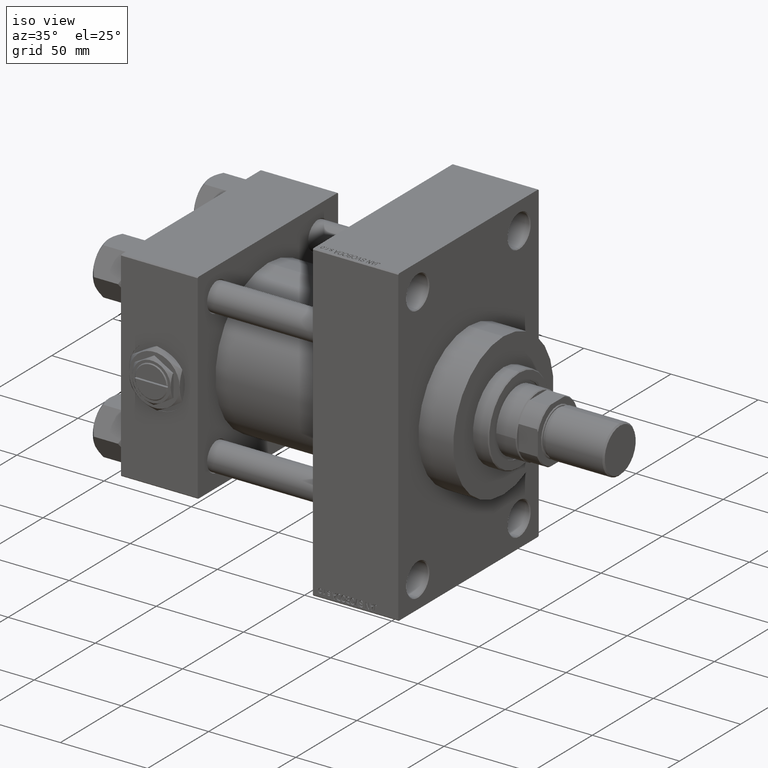
[diagram: clean part render]
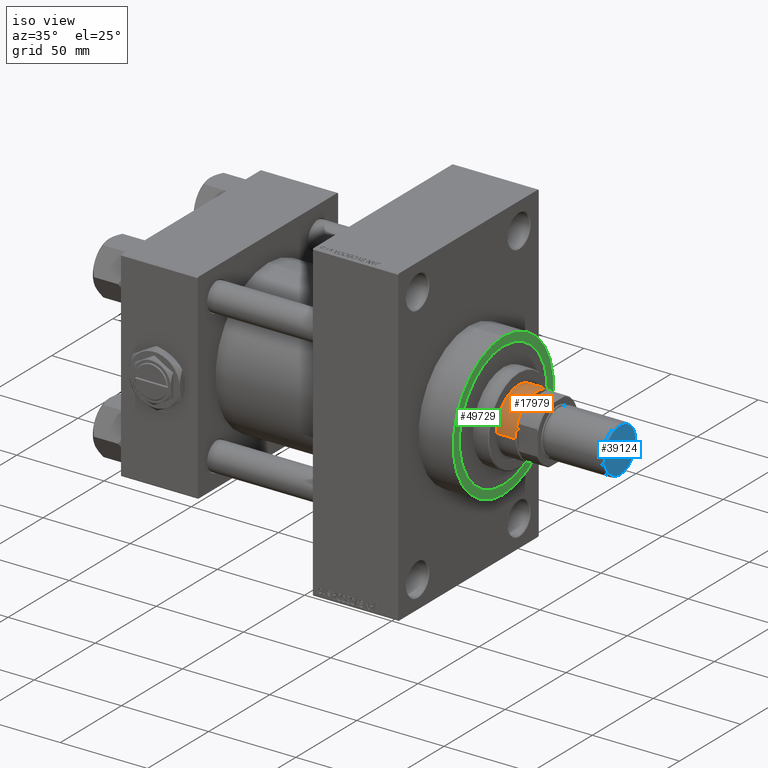
[diagram: same view with three faces highlighted in distinct colors, each labeled with its STEP entity id]
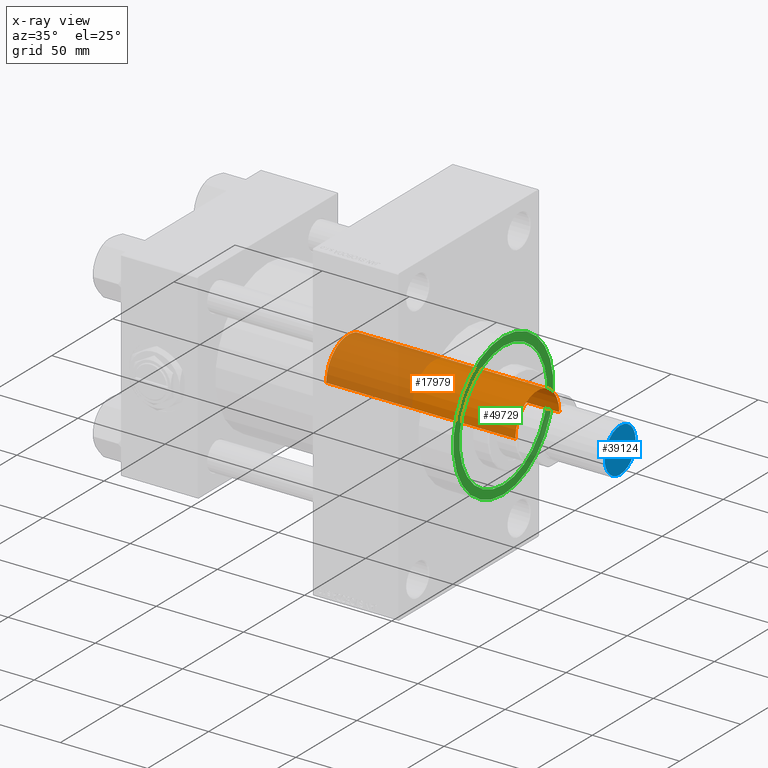
[diagram: x-ray of the same camera — body ghosted, the three highlighted faces saturated]
A machine part, iso view with three faces highlighted in distinct colors.
The next image is the same camera in x-ray (body ghosted, the three faces saturated) — at least one of them is partly hidden behind the body in this view.
Their STEP definitions:

[orange] entity #17979 — the highlighted cylindrical surface (partial cylindrical patch) has radius 18 mm, axis along (-1, 0, 0).
#1216 = CARTESIAN_POINT ( 'NONE',  ( 18.00000000000000000, 2.204364238465235428E-15, 46.00000000000000000 ) ) ;
#1577 = CARTESIAN_POINT ( 'NONE',  ( 18.00000000000000000, 2.204364238465235428E-15, 155.0000000000000000 ) ) ;
#2056 = DIRECTION ( 'NONE',  ( 1.000000000000000000, 0.000000000000000000, 0.000000000000000000 ) ) ;
#3685 = EDGE_CURVE ( 'NONE', #16032, #28074, #46799, .T. ) ;
#4630 = DIRECTION ( 'NONE',  ( -0.000000000000000000, -0.000000000000000000, -1.000000000000000000 ) ) ;
#5237 = EDGE_CURVE ( 'NONE', #41529, #15264, #44672, .T. ) ;
#7007 = CARTESIAN_POINT ( 'NONE',  ( -18.00000000000000000, 0.000000000000000000, 154.4999999999999716 ) ) ;
#9617 = FACE_OUTER_BOUND ( 'NONE', #43288, .T. ) ;
#10102 = DIRECTION ( 'NONE',  ( -0.000000000000000000, -0.000000000000000000, -1.000000000000000000 ) ) ;
#10877 = VECTOR ( 'NONE', #4630, 1000.000000000000000 ) ;
#10985 = ORIENTED_EDGE ( 'NONE', *, *, #3685, .F. ) ;
#12832 = AXIS2_PLACEMENT_3D ( 'NONE', #13436, #20986, #2056 ) ;
#12921 = DIRECTION ( 'NONE',  ( -0.000000000000000000, -0.000000000000000000, -1.000000000000000000 ) ) ;
#13436 = CARTESIAN_POINT ( 'NONE',  ( 0.000000000000000000, 0.000000000000000000, 46.00000000000000000 ) ) ;
#13920 = CARTESIAN_POINT ( 'NONE',  ( 18.00000000000000000, 2.204364238465235428E-15, 154.4999999999999716 ) ) ;
#14138 = CARTESIAN_POINT ( 'NONE',  ( -18.00000000000000000, 0.000000000000000000, 46.00000000000000000 ) ) ;
#15264 = VERTEX_POINT ( 'NONE', #14138 ) ;
#16027 = EDGE_CURVE ( 'NONE', #15264, #28074, #17613, .T. ) ;
#16032 = VERTEX_POINT ( 'NONE', #13920 ) ;
#17613 = CIRCLE ( 'NONE', #12832, 18.00000000000000000 ) ;
#17979 = ADVANCED_FACE ( 'NONE', ( #9617 ), #36371, .T. ) ;
#20986 = DIRECTION ( 'NONE',  ( 0.000000000000000000, 0.000000000000000000, 1.000000000000000000 ) ) ;
#21098 = CIRCLE ( 'NONE', #37215, 18.00000000000000000 ) ;
#23665 = DIRECTION ( 'NONE',  ( 1.000000000000000000, 0.000000000000000000, 0.000000000000000000 ) ) ;
#24510 = DIRECTION ( 'NONE',  ( -1.000000000000000000, 0.000000000000000000, 0.000000000000000000 ) ) ;
#24995 = CARTESIAN_POINT ( 'NONE',  ( -18.00000000000000000, 0.000000000000000000, 155.0000000000000000 ) ) ;
#28074 = VERTEX_POINT ( 'NONE', #1216 ) ;
#34786 = CARTESIAN_POINT ( 'NONE',  ( 0.000000000000000000, 0.000000000000000000, 154.4999999999999716 ) ) ;
#35024 = VECTOR ( 'NONE', #10102, 1000.000000000000000 ) ;
#35450 = ORIENTED_EDGE ( 'NONE', *, *, #37651, .T. ) ;
#36371 = CYLINDRICAL_SURFACE ( 'NONE', #47405, 18.00000000000000000 ) ;
#37215 = AXIS2_PLACEMENT_3D ( 'NONE', #34786, #43359, #23665 ) ;
#37651 = EDGE_CURVE ( 'NONE', #16032, #41529, #21098, .T. ) ;
#38076 = ORIENTED_EDGE ( 'NONE', *, *, #5237, .T. ) ;
#41529 = VERTEX_POINT ( 'NONE', #7007 ) ;
#43288 = EDGE_LOOP ( 'NONE', ( #10985, #35450, #38076, #48605 ) ) ;
#43359 = DIRECTION ( 'NONE',  ( 0.000000000000000000, 0.000000000000000000, -1.000000000000000000 ) ) ;
#44182 = CARTESIAN_POINT ( 'NONE',  ( 0.000000000000000000, 0.000000000000000000, 155.0000000000000000 ) ) ;
#44672 = LINE ( 'NONE', #24995, #35024 ) ;
#46799 = LINE ( 'NONE', #1577, #10877 ) ;
#47405 = AXIS2_PLACEMENT_3D ( 'NONE', #44182, #12921, #24510 ) ;
#48605 = ORIENTED_EDGE ( 'NONE', *, *, #16027, .T. ) ;

[blue] entity #39124 — the highlighted planar face has unit normal (-1, 0, 0).
#2190 = EDGE_LOOP ( 'NONE', ( #22096, #24373 ) ) ;
#3033 = CARTESIAN_POINT ( 'NONE',  ( -12.70000000000000462, 1.604287306883033044E-15, 0.000000000000000000 ) ) ;
#4048 = DIRECTION ( 'NONE',  ( -0.000000000000000000, -0.000000000000000000, -1.000000000000000000 ) ) ;
#6307 = AXIS2_PLACEMENT_3D ( 'NONE', #13607, #21415, #40124 ) ;
#6580 = FACE_OUTER_BOUND ( 'NONE', #2190, .T. ) ;
#10359 = CIRCLE ( 'NONE', #6307, 12.70000000000000462 ) ;
#13607 = CARTESIAN_POINT ( 'NONE',  ( 0.000000000000000000, 0.000000000000000000, 0.000000000000000000 ) ) ;
#13917 = PLANE ( 'NONE',  #17878 ) ;
#14342 = EDGE_CURVE ( 'NONE', #34459, #39820, #10359, .T. ) ;
#16189 = EDGE_CURVE ( 'NONE', #39820, #34459, #41814, .T. ) ;
#17878 = AXIS2_PLACEMENT_3D ( 'NONE', #21967, #40678, #29795 ) ;
#20838 = AXIS2_PLACEMENT_3D ( 'NONE', #30818, #4048, #20924 ) ;
#20924 = DIRECTION ( 'NONE',  ( 1.000000000000000000, 0.000000000000000000, 0.000000000000000000 ) ) ;
#21415 = DIRECTION ( 'NONE',  ( -0.000000000000000000, -0.000000000000000000, -1.000000000000000000 ) ) ;
#21967 = CARTESIAN_POINT ( 'NONE',  ( 0.000000000000000000, 0.000000000000000000, 0.000000000000000000 ) ) ;
#22096 = ORIENTED_EDGE ( 'NONE', *, *, #14342, .T. ) ;
#24373 = ORIENTED_EDGE ( 'NONE', *, *, #16189, .T. ) ;
#29795 = DIRECTION ( 'NONE',  ( 1.000000000000000000, 0.000000000000000000, -0.000000000000000000 ) ) ;
#30818 = CARTESIAN_POINT ( 'NONE',  ( 0.000000000000000000, 0.000000000000000000, 0.000000000000000000 ) ) ;
#34459 = VERTEX_POINT ( 'NONE', #49661 ) ;
#39124 = ADVANCED_FACE ( 'NONE', ( #6580 ), #13917, .F. ) ;
#39820 = VERTEX_POINT ( 'NONE', #3033 ) ;
#40124 = DIRECTION ( 'NONE',  ( 1.000000000000000000, 0.000000000000000000, 0.000000000000000000 ) ) ;
#40678 = DIRECTION ( 'NONE',  ( 0.000000000000000000, 0.000000000000000000, 1.000000000000000000 ) ) ;
#41814 = CIRCLE ( 'NONE', #20838, 12.70000000000000462 ) ;
#49661 = CARTESIAN_POINT ( 'NONE',  ( 12.70000000000000462, 0.000000000000000000, 0.000000000000000000 ) ) ;

[green] entity #49729 — the highlighted planar face has unit normal (1, 0, 0).
#156 = ORIENTED_EDGE ( 'NONE', *, *, #19762, .F. ) ;
#406 = FACE_OUTER_BOUND ( 'NONE', #32631, .T. ) ;
#2538 = VERTEX_POINT ( 'NONE', #41155 ) ;
#6373 = CIRCLE ( 'NONE', #10385, 36.00000000000000000 ) ;
#7412 = VERTEX_POINT ( 'NONE', #7872 ) ;
#7872 = CARTESIAN_POINT ( 'NONE',  ( 179.0000000000000000, 4.408728476930470856E-15, 36.00000000000000000 ) ) ;
#8748 = PLANE ( 'NONE',  #23807 ) ;
#9089 = CIRCLE ( 'NONE', #23602, 36.00000000000000000 ) ;
#10119 = CIRCLE ( 'NONE', #48807, 41.00000000000000000 ) ;
#10385 = AXIS2_PLACEMENT_3D ( 'NONE', #49727, #37363, #18415 ) ;
#12471 = DIRECTION ( 'NONE',  ( 1.000000000000000000, 0.000000000000000000, 0.000000000000000000 ) ) ;
#15962 = ORIENTED_EDGE ( 'NONE', *, *, #39220, .T. ) ;
#18415 = DIRECTION ( 'NONE',  ( 0.000000000000000000, 0.000000000000000000, -1.000000000000000000 ) ) ;
#19762 = EDGE_CURVE ( 'NONE', #21988, #7412, #6373, .T. ) ;
#19846 = DIRECTION ( 'NONE',  ( 0.000000000000000000, 0.000000000000000000, -1.000000000000000000 ) ) ;
#21988 = VERTEX_POINT ( 'NONE', #24404 ) ;
#22624 = ORIENTED_EDGE ( 'NONE', *, *, #39604, .F. ) ;
#23602 = AXIS2_PLACEMENT_3D ( 'NONE', #47038, #12471, #33731 ) ;
#23807 = AXIS2_PLACEMENT_3D ( 'NONE', #24128, #39041, #19846 ) ;
#24128 = CARTESIAN_POINT ( 'NONE',  ( 179.0000000000000000, 0.000000000000000000, 0.000000000000000000 ) ) ;
#24404 = CARTESIAN_POINT ( 'NONE',  ( 179.0000000000000000, 0.000000000000000000, -36.00000000000000000 ) ) ;
#25948 = CIRCLE ( 'NONE', #38078, 41.00000000000000000 ) ;
#28021 = DIRECTION ( 'NONE',  ( 1.000000000000000000, 0.000000000000000000, 0.000000000000000000 ) ) ;
#31575 = VERTEX_POINT ( 'NONE', #45429 ) ;
#32631 = EDGE_LOOP ( 'NONE', ( #47920, #15962 ) ) ;
#33731 = DIRECTION ( 'NONE',  ( 0.000000000000000000, 0.000000000000000000, -1.000000000000000000 ) ) ;
#33811 = CARTESIAN_POINT ( 'NONE',  ( 179.0000000000000000, 0.000000000000000000, 0.000000000000000000 ) ) ;
#37363 = DIRECTION ( 'NONE',  ( 1.000000000000000000, 0.000000000000000000, 0.000000000000000000 ) ) ;
#38078 = AXIS2_PLACEMENT_3D ( 'NONE', #43908, #28021, #42941 ) ;
#38607 = DIRECTION ( 'NONE',  ( 0.000000000000000000, 0.000000000000000000, -1.000000000000000000 ) ) ;
#39041 = DIRECTION ( 'NONE',  ( 1.000000000000000000, 0.000000000000000000, 0.000000000000000000 ) ) ;
#39220 = EDGE_CURVE ( 'NONE', #31575, #2538, #25948, .T. ) ;
#39604 = EDGE_CURVE ( 'NONE', #7412, #21988, #9089, .T. ) ;
#41155 = CARTESIAN_POINT ( 'NONE',  ( 179.0000000000000000, 0.000000000000000000, 41.00000000000000000 ) ) ;
#42941 = DIRECTION ( 'NONE',  ( 0.000000000000000000, 0.000000000000000000, -1.000000000000000000 ) ) ;
#43908 = CARTESIAN_POINT ( 'NONE',  ( 179.0000000000000000, 0.000000000000000000, 0.000000000000000000 ) ) ;
#45429 = CARTESIAN_POINT ( 'NONE',  ( 179.0000000000000000, 5.021051876504148963E-15, -41.00000000000000000 ) ) ;
#46182 = DIRECTION ( 'NONE',  ( 1.000000000000000000, 0.000000000000000000, 0.000000000000000000 ) ) ;
#46717 = EDGE_CURVE ( 'NONE', #2538, #31575, #10119, .T. ) ;
#47038 = CARTESIAN_POINT ( 'NONE',  ( 179.0000000000000000, 0.000000000000000000, 0.000000000000000000 ) ) ;
#47357 = FACE_BOUND ( 'NONE', #49372, .T. ) ;
#47920 = ORIENTED_EDGE ( 'NONE', *, *, #46717, .T. ) ;
#48807 = AXIS2_PLACEMENT_3D ( 'NONE', #33811, #46182, #38607 ) ;
#49372 = EDGE_LOOP ( 'NONE', ( #156, #22624 ) ) ;
#49727 = CARTESIAN_POINT ( 'NONE',  ( 179.0000000000000000, 0.000000000000000000, 0.000000000000000000 ) ) ;
#49729 = ADVANCED_FACE ( 'NONE', ( #47357, #406 ), #8748, .T. ) ;